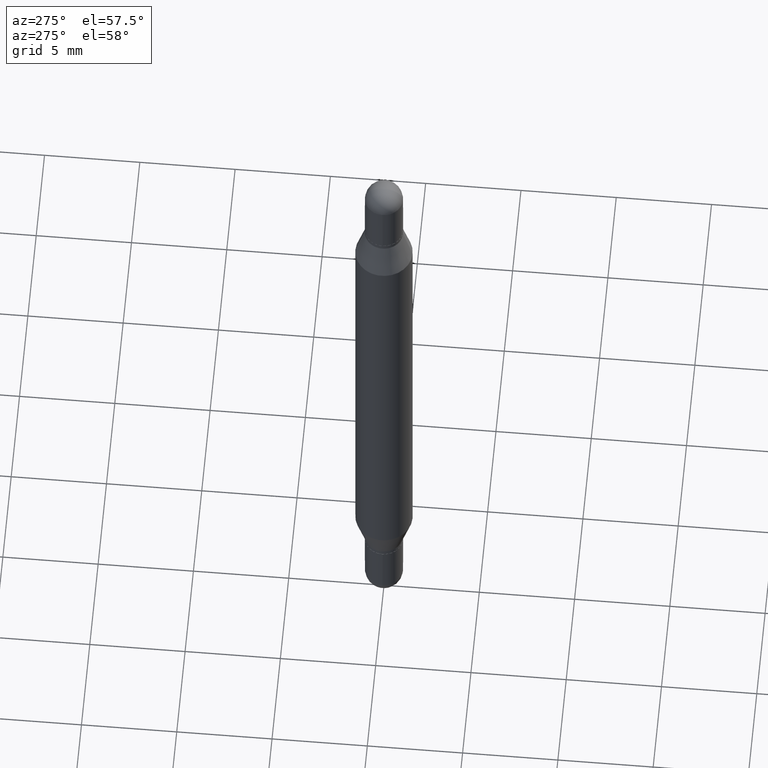
[diagram: clean part render]
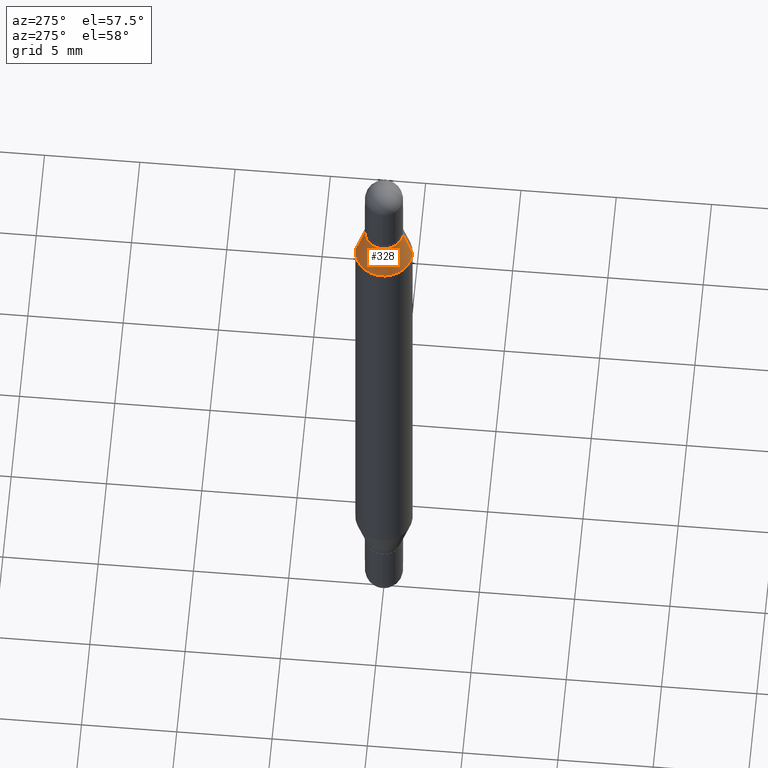
[diagram: same view with one face highlighted and labeled with its STEP entity id]
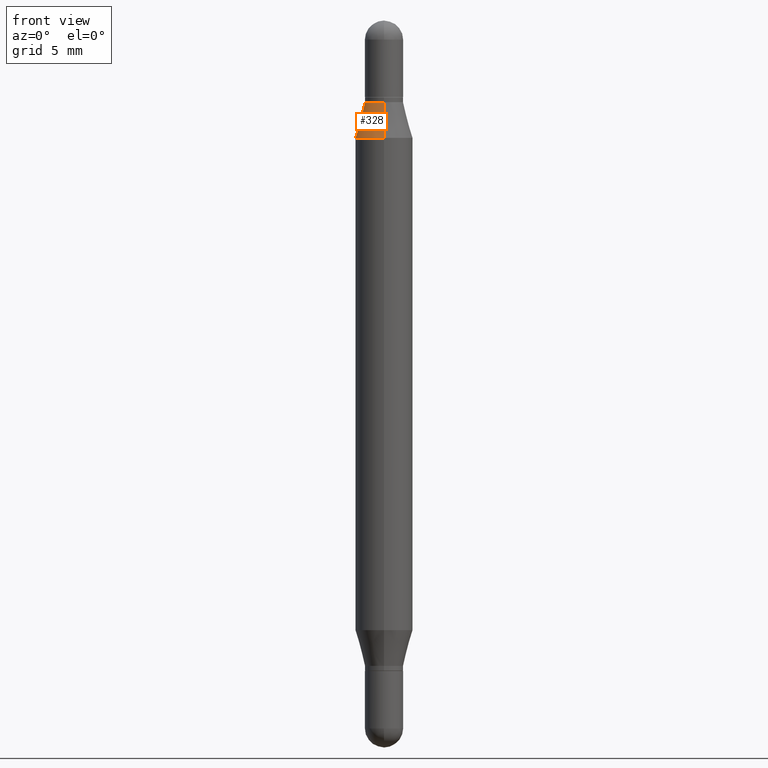
[diagram: same view with one face highlighted and labeled with its STEP entity id]
A machine part, auxiliary view. The second image highlights one B-rep face of the part: STEP entity #328.
A second angle (front view) of the same face is appended — the face is thin or edge-on in the first view.
In plain terms, the highlighted conical surface has half-angle 15 deg.
Its self-contained STEP definition (entity closure, byte-faithful):
#1 = DIRECTION ( 'NONE',  ( -6.982962677686266711E-15, -1.000000000000000000, 3.471217272762731039E-15 ) ) ;
#12 = FACE_OUTER_BOUND ( 'NONE', #774, .T. ) ;
#24 = ORIENTED_EDGE ( 'NONE', *, *, #720, .F. ) ;
#113 = DIRECTION ( 'NONE',  ( -6.982962677686266711E-15, -1.000000000000000000, 3.471217272762731039E-15 ) ) ;
#126 = CARTESIAN_POINT ( 'NONE',  ( -2.747795813669214889E-16, -0.03935000000000050263, -0.1679999999999998161 ) ) ;
#156 = CARTESIAN_POINT ( 'NONE',  ( 2.699605962123416478E-16, 0.03934999999999932996, -0.1680000000000000937 ) ) ;
#190 = DIRECTION ( 'NONE',  ( -2.445858326897780646E-29, -3.480172282808476455E-15, -1.000000000000000000 ) ) ;
#216 = ORIENTED_EDGE ( 'NONE', *, *, #234, .F. ) ;
#234 = EDGE_CURVE ( 'NONE', #1076, #894, #510, .T. ) ;
#281 = DIRECTION ( 'NONE',  ( -1.807323732225331717E-15, -0.2588190451025252359, -0.9659258262890670910 ) ) ;
#293 = DIRECTION ( 'NONE',  ( -6.982962677686265922E-15, -1.000000000000000000, 3.469747663417777397E-15 ) ) ;
#304 = LINE ( 'NONE', #156, #905 ) ;
#328 = ADVANCED_FACE ( 'NONE', ( #12 ), #501, .T. ) ;
#359 = DIRECTION ( 'NONE',  ( 2.445858326897780646E-29, 3.480172282808476455E-15, 1.000000000000000000 ) ) ;
#362 = ORIENTED_EDGE ( 'NONE', *, *, #931, .T. ) ;
#371 = CARTESIAN_POINT ( 'NONE',  ( 3.248344443952942082E-29, -5.927114087464415115E-16, -0.1679999999999999549 ) ) ;
#373 = ORIENTED_EDGE ( 'NONE', *, *, #578, .T. ) ;
#384 = CARTESIAN_POINT ( 'NONE',  ( -2.747795813669214889E-16, -0.03935000000000050263, -0.1679999999999998161 ) ) ;
#389 = VERTEX_POINT ( 'NONE', #882 ) ;
#405 = DIRECTION ( 'NONE',  ( 1.775627540710966878E-15, 0.2588190451025184080, -0.9659258262890689783 ) ) ;
#413 = CARTESIAN_POINT ( 'NONE',  ( 3.248344443952942082E-29, -5.927114087464415115E-16, -0.1679999999999999549 ) ) ;
#434 = CARTESIAN_POINT ( 'NONE',  ( 3.068521513334213693E-29, -8.485785503835664972E-16, -0.2415214009091068426 ) ) ;
#479 = VECTOR ( 'NONE', #281, 39.37007874015748854 ) ;
#496 = DIRECTION ( 'NONE',  ( 2.445858326897780646E-29, 3.480172282808476455E-15, 1.000000000000000000 ) ) ;
#501 = CONICAL_SURFACE ( 'NONE', #782, 0.03934999999999991283, 0.2617993877991505181 ) ;
#510 = LINE ( 'NONE', #126, #479 ) ;
#578 = EDGE_CURVE ( 'NONE', #389, #946, #304, .T. ) ;
#605 = AXIS2_PLACEMENT_3D ( 'NONE', #434, #359, #293 ) ;
#687 = CARTESIAN_POINT ( 'NONE',  ( 4.051124067684395845E-16, 0.05904999999999915178, -0.2415214009091070368 ) ) ;
#720 = EDGE_CURVE ( 'NONE', #389, #1076, #1104, .T. ) ;
#765 = CARTESIAN_POINT ( 'NONE',  ( -4.123439461173433657E-16, -0.05905000000000084487, -0.2415214009091066205 ) ) ;
#774 = EDGE_LOOP ( 'NONE', ( #24, #373, #362, #216 ) ) ;
#782 = AXIS2_PLACEMENT_3D ( 'NONE', #371, #190, #113 ) ;
#808 = AXIS2_PLACEMENT_3D ( 'NONE', #413, #496, #1 ) ;
#882 = CARTESIAN_POINT ( 'NONE',  ( 2.699605962123417464E-16, 0.03934999999999932996, -0.1680000000000000937 ) ) ;
#894 = VERTEX_POINT ( 'NONE', #765 ) ;
#905 = VECTOR ( 'NONE', #405, 39.37007874015748854 ) ;
#931 = EDGE_CURVE ( 'NONE', #946, #894, #943, .T. ) ;
#943 = CIRCLE ( 'NONE', #605, 0.05904999999999999832 ) ;
#946 = VERTEX_POINT ( 'NONE', #687 ) ;
#1076 = VERTEX_POINT ( 'NONE', #384 ) ;
#1104 = CIRCLE ( 'NONE', #808, 0.03934999999999991283 ) ;